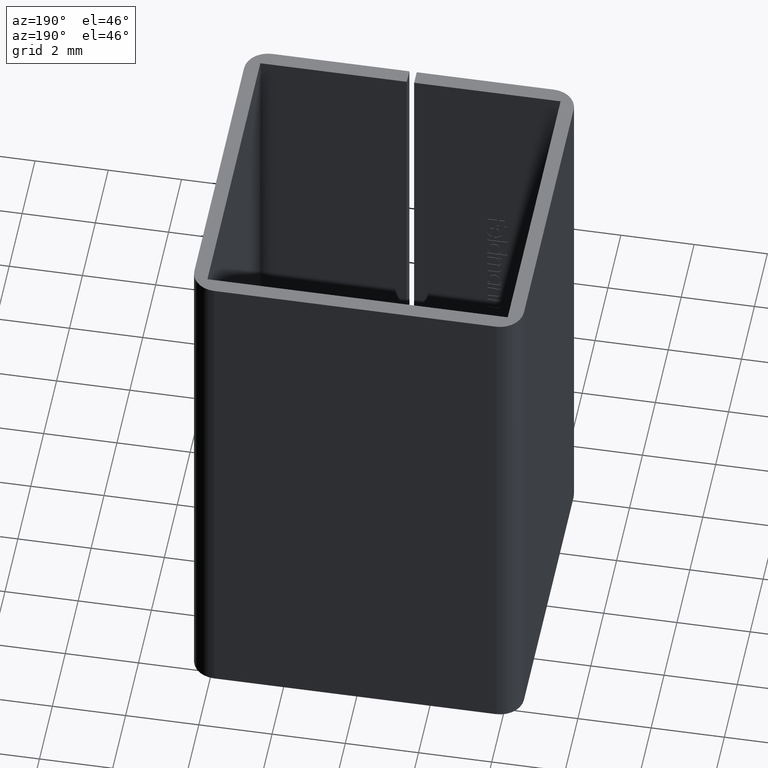
[diagram: clean part render]
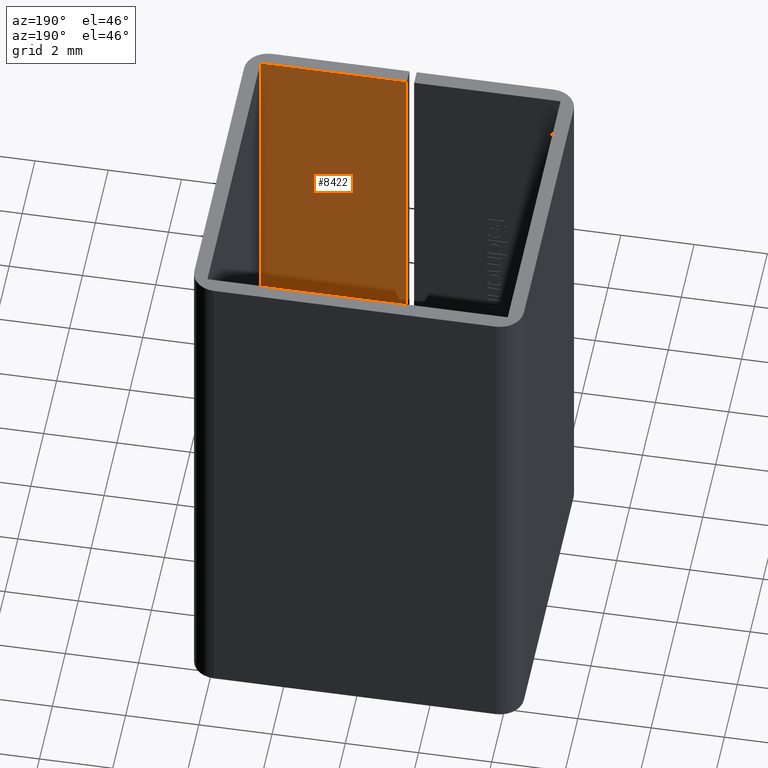
[diagram: same view with one face highlighted and labeled with its STEP entity id]
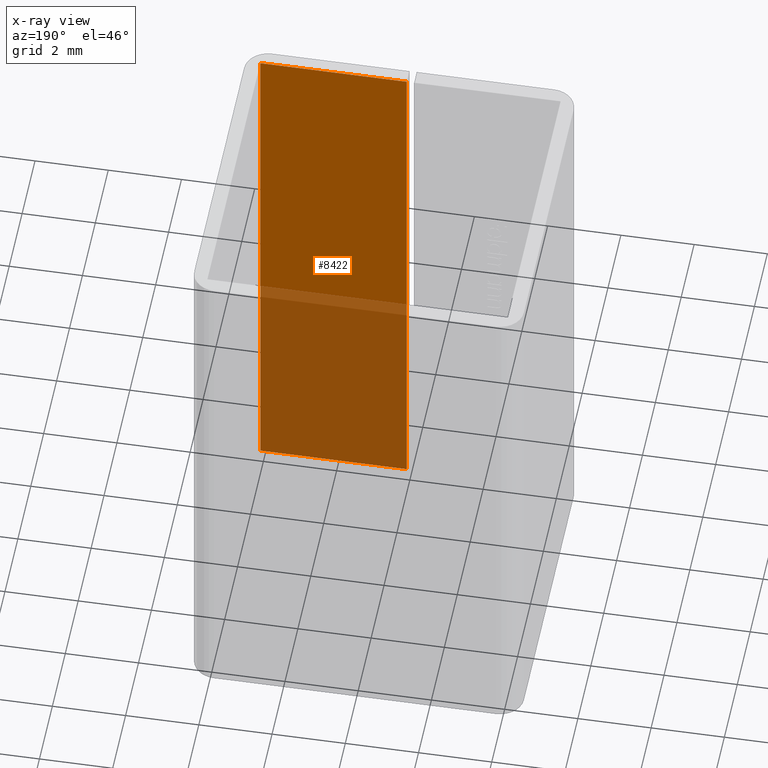
[diagram: x-ray of the same camera — body ghosted, the highlighted face saturated]
A machine part, auxiliary view. The second image highlights one B-rep face of the part: STEP entity #8422.
The next image is the same camera in x-ray: the body ghosted, the highlighted face saturated — about 43% of this face is hidden behind the body in this view.
In plain terms, the highlighted planar face has unit normal (0, 1, -0).
Its self-contained STEP definition (entity closure, byte-faithful):
#252 = CARTESIAN_POINT ( 'NONE',  ( 0.09999999999999950595, -4.099999999999998757, 7.500000000000000000 ) ) ;
#318 = VECTOR ( 'NONE', #3654, 1000.000000000000000 ) ;
#425 = ORIENTED_EDGE ( 'NONE', *, *, #6052, .T. ) ;
#611 = ORIENTED_EDGE ( 'NONE', *, *, #8062, .F. ) ;
#641 = EDGE_CURVE ( 'NONE', #1785, #9629, #4948, .T. ) ;
#968 = AXIS2_PLACEMENT_3D ( 'NONE', #7882, #7854, #3345 ) ;
#1420 = ORIENTED_EDGE ( 'NONE', *, *, #9269, .F. ) ;
#1785 = VERTEX_POINT ( 'NONE', #1880 ) ;
#1880 = CARTESIAN_POINT ( 'NONE',  ( 4.100000000000001421, -4.099999999999999645, 7.500000000000000000 ) ) ;
#2399 = LINE ( 'NONE', #9876, #318 ) ;
#2633 = DIRECTION ( 'NONE',  ( 1.000000000000000000, -2.168404344971007882E-16, 0.000000000000000000 ) ) ;
#2952 = DIRECTION ( 'NONE',  ( -0.000000000000000000, -0.000000000000000000, -1.000000000000000000 ) ) ;
#3040 = DIRECTION ( 'NONE',  ( -0.000000000000000000, -0.000000000000000000, -1.000000000000000000 ) ) ;
#3345 = DIRECTION ( 'NONE',  ( -1.000000000000000000, 2.168404344971007882E-16, 0.000000000000000000 ) ) ;
#3654 = DIRECTION ( 'NONE',  ( 1.000000000000000000, -2.168404344971007882E-16, 0.000000000000000000 ) ) ;
#3677 = LINE ( 'NONE', #5557, #8582 ) ;
#4330 = EDGE_LOOP ( 'NONE', ( #611, #1420, #425, #6245 ) ) ;
#4948 = LINE ( 'NONE', #6884, #6800 ) ;
#5017 = CARTESIAN_POINT ( 'NONE',  ( 0.09999999999999950595, -4.099999999999998757, 7.500000000000000000 ) ) ;
#5062 = VERTEX_POINT ( 'NONE', #7758 ) ;
#5557 = CARTESIAN_POINT ( 'NONE',  ( 0.09999999999999950595, -4.099999999999998757, 7.500000000000000000 ) ) ;
#5726 = CARTESIAN_POINT ( 'NONE',  ( 4.100000000000001421, -4.099999999999999645, -7.500000000000000000 ) ) ;
#5819 = LINE ( 'NONE', #252, #9461 ) ;
#5907 = PLANE ( 'NONE',  #968 ) ;
#6052 = EDGE_CURVE ( 'NONE', #9711, #1785, #5819, .T. ) ;
#6245 = ORIENTED_EDGE ( 'NONE', *, *, #641, .T. ) ;
#6800 = VECTOR ( 'NONE', #2952, 1000.000000000000000 ) ;
#6884 = CARTESIAN_POINT ( 'NONE',  ( 4.100000000000001421, -4.099999999999999645, 7.500000000000000000 ) ) ;
#7507 = FACE_OUTER_BOUND ( 'NONE', #4330, .T. ) ;
#7758 = CARTESIAN_POINT ( 'NONE',  ( 0.09999999999999950595, -4.099999999999998757, -7.500000000000000000 ) ) ;
#7854 = DIRECTION ( 'NONE',  ( 2.168404344971007882E-16, 1.000000000000000000, -0.000000000000000000 ) ) ;
#7882 = CARTESIAN_POINT ( 'NONE',  ( 0.09999999999999950595, -4.099999999999998757, 7.500000000000000000 ) ) ;
#8062 = EDGE_CURVE ( 'NONE', #5062, #9629, #2399, .T. ) ;
#8422 = ADVANCED_FACE ( 'NONE', ( #7507 ), #5907, .T. ) ;
#8582 = VECTOR ( 'NONE', #3040, 1000.000000000000000 ) ;
#9269 = EDGE_CURVE ( 'NONE', #9711, #5062, #3677, .T. ) ;
#9461 = VECTOR ( 'NONE', #2633, 1000.000000000000000 ) ;
#9629 = VERTEX_POINT ( 'NONE', #5726 ) ;
#9711 = VERTEX_POINT ( 'NONE', #5017 ) ;
#9876 = CARTESIAN_POINT ( 'NONE',  ( 0.09999999999999950595, -4.099999999999998757, -7.500000000000000000 ) ) ;